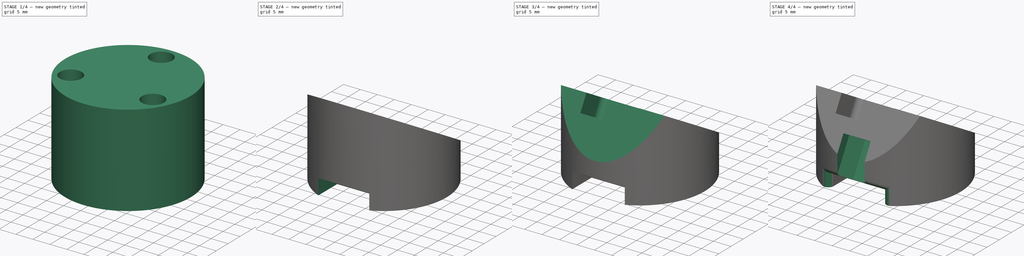
[diagram: build sequence overview — one tinted view per stage of 4, left to right]
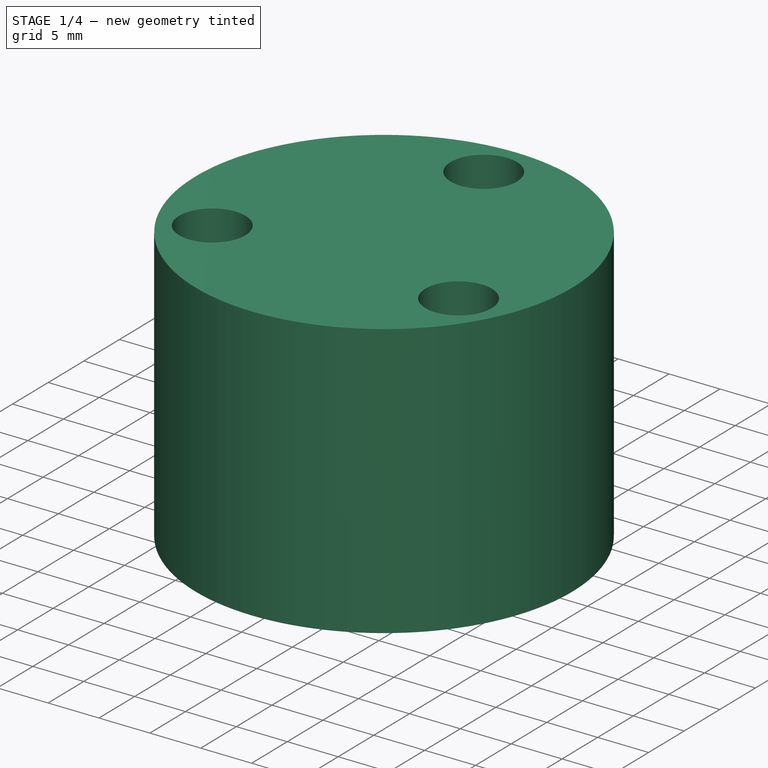
[diagram: stage 1 of 4 — iso view after this stage's code; geometry added in this stage tinted green]
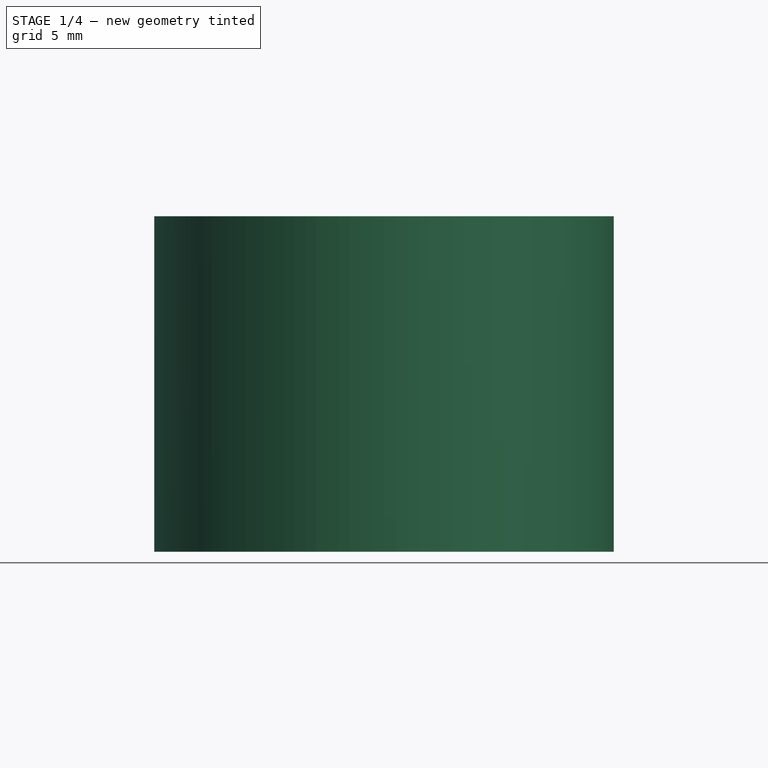
[diagram: stage 1 of 4 — front view after this stage's code; geometry added in this stage tinted green]
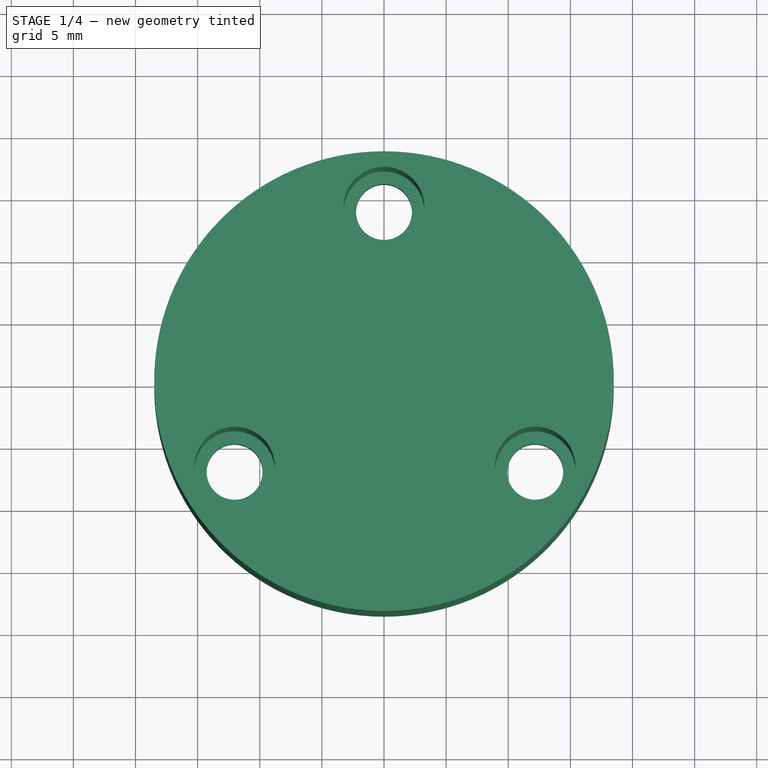
[diagram: stage 1 of 4 — top view after this stage's code; geometry added in this stage tinted green]
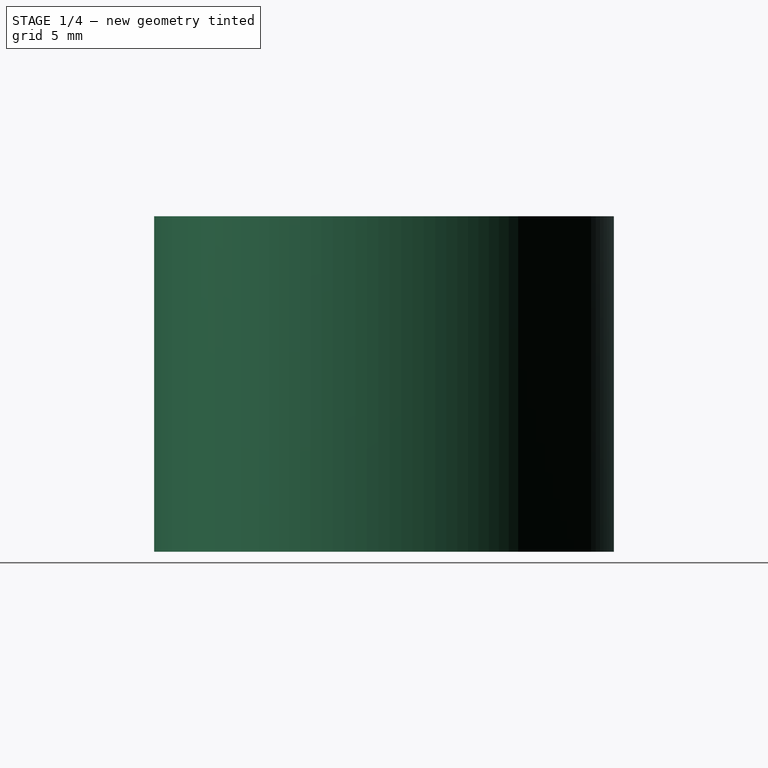
[diagram: stage 1 of 4 — right view after this stage's code; geometry added in this stage tinted green]
FCSTD DOCUMENT  (FreeCAD 0.21R33771 (Git))
Label: wheel_bracket
License: All rights reserved
LicenseURL: http://en.wikipedia.org/wiki/All_rights_reserved
objects: Sketcher::SketchObject×10, PartDesign::Pocket×8, PartDesign::Pad×2, PartDesign::Fillet×1, PartDesign::Body×1
note: 33 computed .brp shape members not serialized (recipe doc carries the construction recipe); baked Part::Feature solids carry a one-line shape summary decoded from their .brp

FEATURE [Sketcher::SketchObject] Sketch
  FullyConstrained = true
  MapMode = 5
  Support = -> [XY_Plane]
  sketch-geometry (4):
    g0: Circle CenterX=0 CenterY=14 CenterZ=0 NormalX=0 NormalY=0 NormalZ=1 AngleXU=0 Radius=2.25
    g1: Circle CenterX=-12.0274 CenterY=-6.91571 CenterZ=0 NormalX=0 NormalY=0 NormalZ=1 AngleXU=0 Radius=2.25
    g2: Circle CenterX=12.1726 CenterY=-6.91571 CenterZ=0 NormalX=0 NormalY=0 NormalZ=1 AngleXU=0 Radius=2.25
    g3: ArcOfCircle CenterX=0 CenterY=0 CenterZ=0 NormalX=0 NormalY=0 NormalZ=1 AngleXU=0 Radius=18.5 StartAngle=1.5708 EndAngle=7.85398
  constraints (13):
    c: PointOnObject(g0,g-2)
    c: Diameter(g0) = 4.5
    c: Equal(g2,g0)
    c: Equal(g1,g2)
    c: Horizontal(g2,g1)
    c: Distance(g2,g0) = 24.2
    c: DistanceX(g1,g2) = 24.2
    c: DistanceY(g-1,g0) = 14
    c: Distance(g2,g-1) = 14
    c: Coincident(g3,g-1)
    c: PointOnObject(g3,g-2)
    c: PointOnObject(g3,g-2)
    c: Diameter(g3) = 37
FEATURE [PartDesign::Pad] Pad  label="base"
  Direction = (0,0,1)
  Length = 5
  Length2 = 10
  Profile = -> Sketch
  ReferenceAxis = -> Sketch [N_Axis]
  Refine = true
  Type = 0
FEATURE [Sketcher::SketchObject] Sketch001
  FullyConstrained = true
  MapMode = 5
  Placement = pos=(0,0,5) rot=(0,0,1;0rad)
  Support = -> [Pad]
  sketch-geometry (4):
    g0: Circle CenterX=0 CenterY=14 CenterZ=0 NormalX=0 NormalY=0 NormalZ=1 AngleXU=0 Radius=3.25
    g1: Circle CenterX=-12.0274 CenterY=-6.91571 CenterZ=0 NormalX=0 NormalY=0 NormalZ=1 AngleXU=0 Radius=3.25
    g2: Circle CenterX=12.1726 CenterY=-6.91571 CenterZ=0 NormalX=0 NormalY=0 NormalZ=1 AngleXU=0 Radius=3.25
    g3: ArcOfCircle CenterX=0 CenterY=0 CenterZ=0 NormalX=0 NormalY=0 NormalZ=1 AngleXU=0 Radius=18.5 StartAngle=1.5708 EndAngle=7.85398
  constraints (13):
    c: PointOnObject(g0,g-2)
    c: Diameter(g0) = 6.5
    c: Equal(g0,g2)
    c: Equal(g1,g0)
    c: DistanceY(g-1,g0) = 14
    c: Distance(g2,g0) = 24.2
    c: Distance(g2,g-1) = 14
    c: Horizontal(g1,g2)
    c: DistanceX(g1,g2) = 24.2
    c: Coincident(g3,g-1)
    c: PointOnObject(g3,g-2)
    c: PointOnObject(g3,g-2)
    c: Diameter(g3) = 37
FEATURE [PartDesign::Pad] Pad001  label="screw_holes"
  BaseFeature = -> Pad
  Direction = (0,0,1)
  Length = 22
  Length2 = 10
  Profile = -> Sketch001
  ReferenceAxis = -> Sketch001 [N_Axis]
  Refine = true
  Type = 0
FEATURE [Sketcher::SketchObject] Sketch002
  FullyConstrained = true
  MapMode = 5
  Placement = pos=(0,0,0) rot=(1,0,0;3.14159rad)
  Support = -> [Pad001]
  sketch-geometry (1):
    g0: Circle CenterX=0 CenterY=0 CenterZ=0 NormalX=0 NormalY=0 NormalZ=1 AngleXU=0 Radius=8
  constraints (2):
    c: Coincident(g0,g-1)
    c: Diameter(g0) = 16
FEATURE [PartDesign::Pocket] Pocket  label="recess"
  BaseFeature = -> Pad001
  Direction = (0,0,1)
  Length = 2.5
  Length2 = 5
  Profile = -> Sketch002
  ReferenceAxis = -> Sketch002 [N_Axis]
  Type = 0
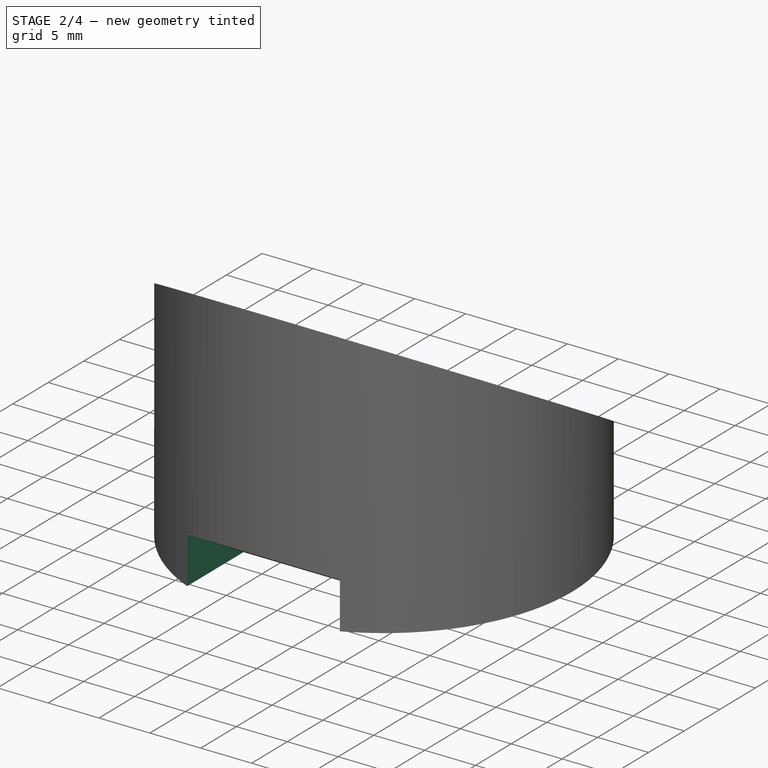
[diagram: stage 2 of 4 — iso view after this stage's code; geometry added in this stage tinted green]
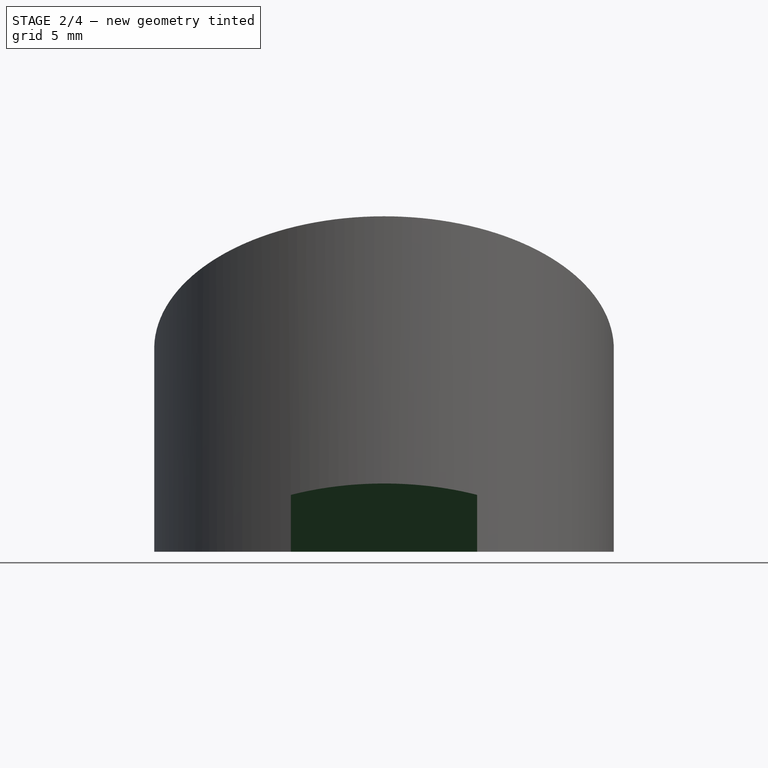
[diagram: stage 2 of 4 — front view after this stage's code; geometry added in this stage tinted green]
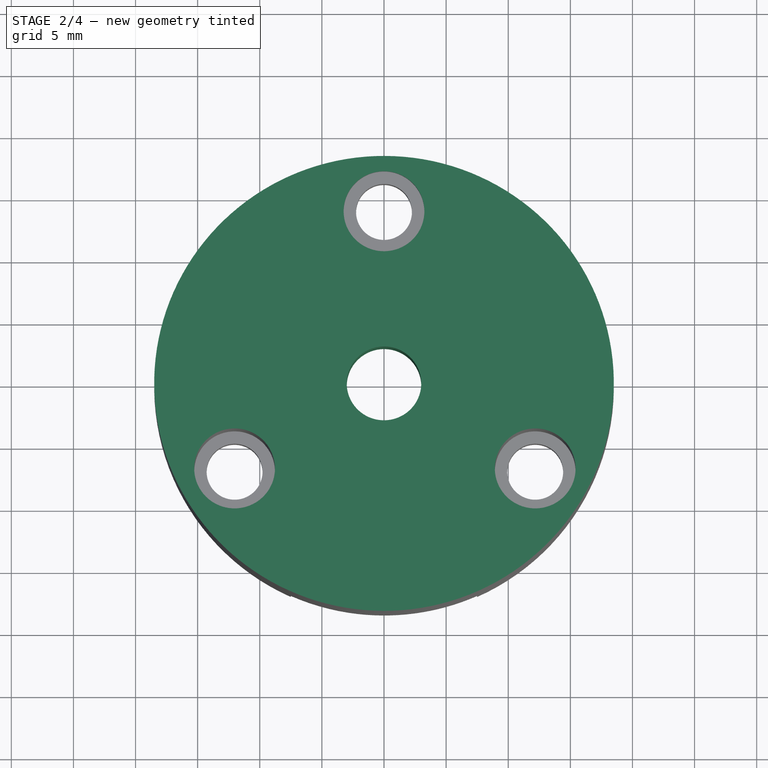
[diagram: stage 2 of 4 — top view after this stage's code; geometry added in this stage tinted green]
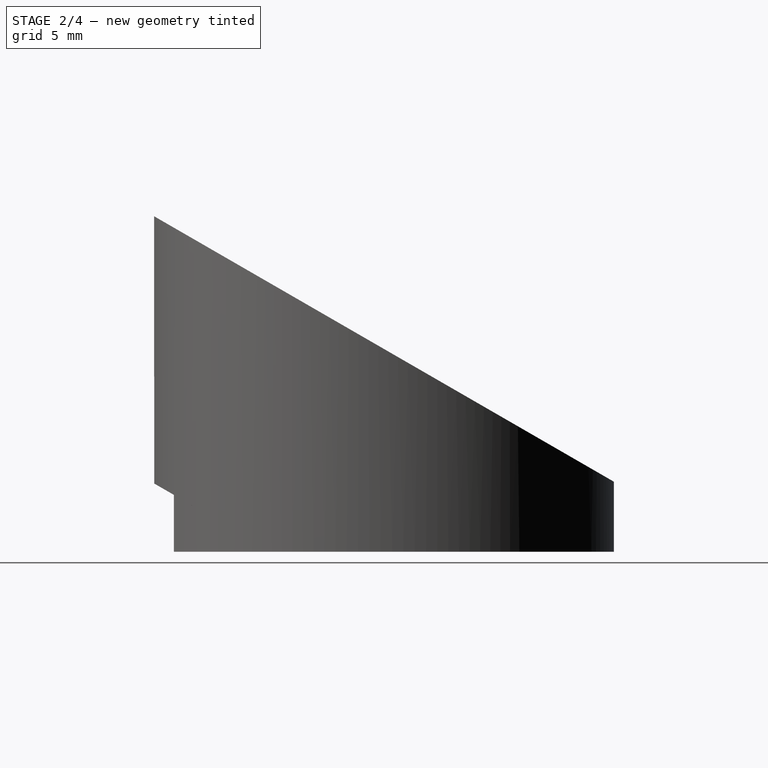
[diagram: stage 2 of 4 — right view after this stage's code; geometry added in this stage tinted green]
FEATURE [Sketcher::SketchObject] Sketch003
  FullyConstrained = true
  MapMode = 5
  Placement = pos=(0,0,2.5) rot=(1,0,0;3.14159rad)
  Support = -> [Pocket]
  sketch-geometry (1):
    g0: Circle CenterX=0 CenterY=0 CenterZ=0 NormalX=0 NormalY=0 NormalZ=1 AngleXU=0 Radius=3
  constraints (2):
    c: Coincident(g0,g-1)
    c: Diameter(g0) = 6
FEATURE [PartDesign::Pocket] Pocket001  label="pin_hole"
  BaseFeature = -> Pocket
  Direction = (0,0,1)
  Length = 15
  Length2 = 5
  Profile = -> Sketch003
  ReferenceAxis = -> Sketch003 [N_Axis]
  Type = 1
FEATURE [Sketcher::SketchObject] Sketch005
  FullyConstrained = true
  MapMode = 5
  Placement = pos=(0,0,0) rot=(1,0,0;3.14159rad)
  sketch-geometry (5):
    g0: LineSegment StartX=-7.5 StartY=18.5 StartZ=0 EndX=-7.5 EndY=9 EndZ=0
    g1: LineSegment StartX=-7.5 StartY=9 StartZ=0 EndX=7.5 EndY=9 EndZ=0
    g2: LineSegment StartX=7.5 StartY=9 StartZ=0 EndX=7.5 EndY=18.5 EndZ=0
    g3: LineSegment StartX=7.5 StartY=18.5 StartZ=0 EndX=-7.5 EndY=18.5 EndZ=0
    g4: GeomPoint X=0 Y=13.75 Z=0
  constraints (13):
    c: Coincident(g0,g1)
    c: Coincident(g1,g2)
    c: Coincident(g2,g3)
    c: Coincident(g3,g0)
    c: Horizontal(g1)
    c: Horizontal(g3)
    c: Vertical(g0)
    c: Vertical(g2)
    c: Symmetric(g1,g0,g4)
    c: PointOnObject(g4,g-2)
    c: DistanceX(g1,g1) = 15
    c: DistanceY(g2,g2) = 9.5
    c: DistanceY(g-1,g1) = 9
FEATURE [PartDesign::Pocket] Pocket002  label="cable_slot"
  BaseFeature = -> Pocket001
  Direction = (0,-1.73,1)
  Length = 6
  Length2 = 5
  Profile = -> Sketch005
  ReferenceAxis = -> Sketch005 [N_Axis]
  Type = 0
  UseCustomVector = true
FEATURE [Sketcher::SketchObject] Sketch006
  AttachmentOffset = pos=(0,0,20) rot=(0,0,1;0rad)
  FullyConstrained = true
  MapMode = 5
  Placement = pos=(20,-4.4e-15,4.4e-15) rot=(0.57735,0.57735,0.57735;2.0944rad)
  Support = -> [YZ_Plane]
  sketch-geometry (3):
    g0: LineSegment StartX=-18.5 StartY=27 StartZ=0 EndX=18.5 EndY=27 EndZ=0
    g1: LineSegment StartX=-18.5 StartY=27 StartZ=0 EndX=18.5 EndY=5.63804 EndZ=0
    g2: LineSegment StartX=18.5 StartY=27 StartZ=0 EndX=18.5 EndY=5.63804 EndZ=0
  constraints (8):
    c: Coincident(g1,g0)
    c: Coincident(g2,g0)
    c: Coincident(g2,g1)
    c: Vertical(g2)
    c: Angle(g1,g0) = 0.523599
    c: DistanceX(g0,g0) = 37
    c: Symmetric(g0,g0,g-2)
    c: DistanceY(g-1,g0) = 27
FEATURE [PartDesign::Pocket] Pocket003
  BaseFeature = -> Pocket002
  Direction = (-1,2e-16,-3e-16)
  Length = 5
  Length2 = 5
  Profile = -> Sketch006
  ReferenceAxis = -> Sketch006 [N_Axis]
  Type = 1
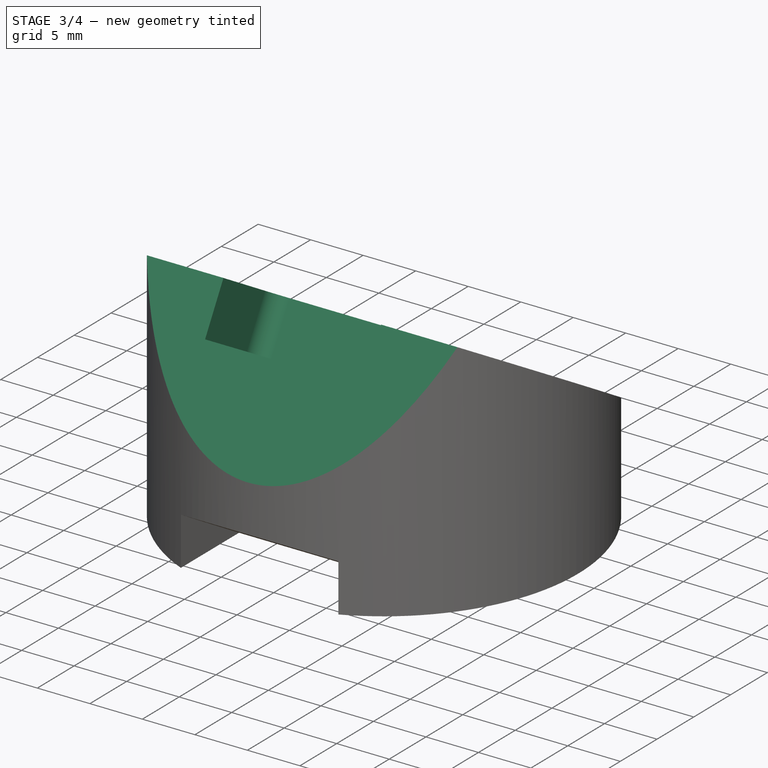
[diagram: stage 3 of 4 — iso view after this stage's code; geometry added in this stage tinted green]
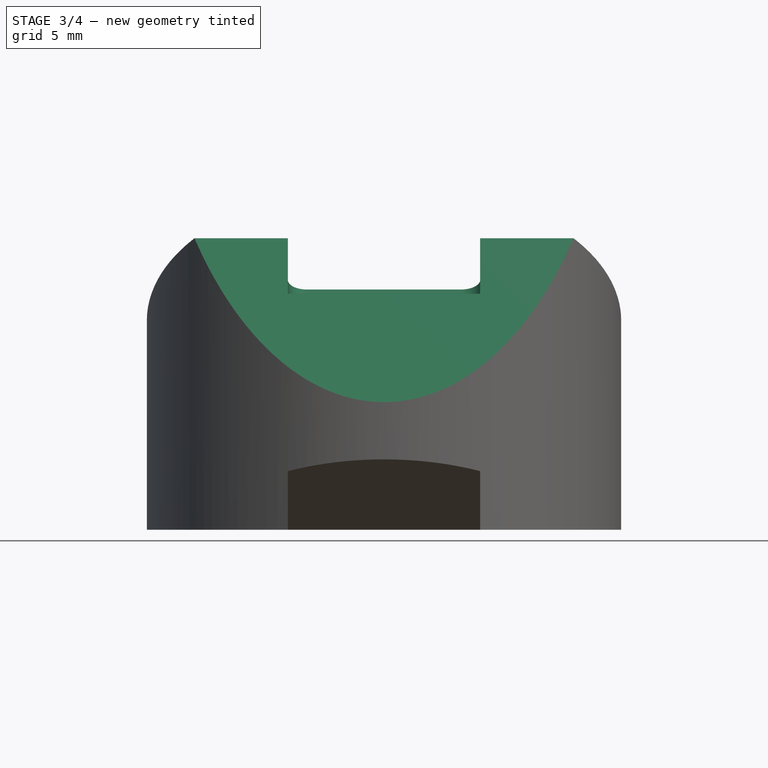
[diagram: stage 3 of 4 — front view after this stage's code; geometry added in this stage tinted green]
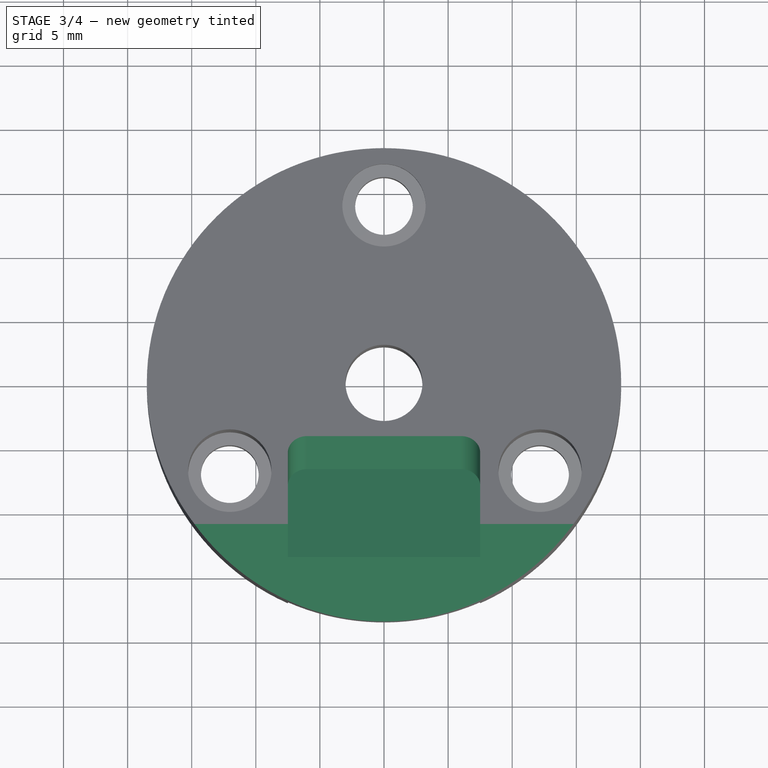
[diagram: stage 3 of 4 — top view after this stage's code; geometry added in this stage tinted green]
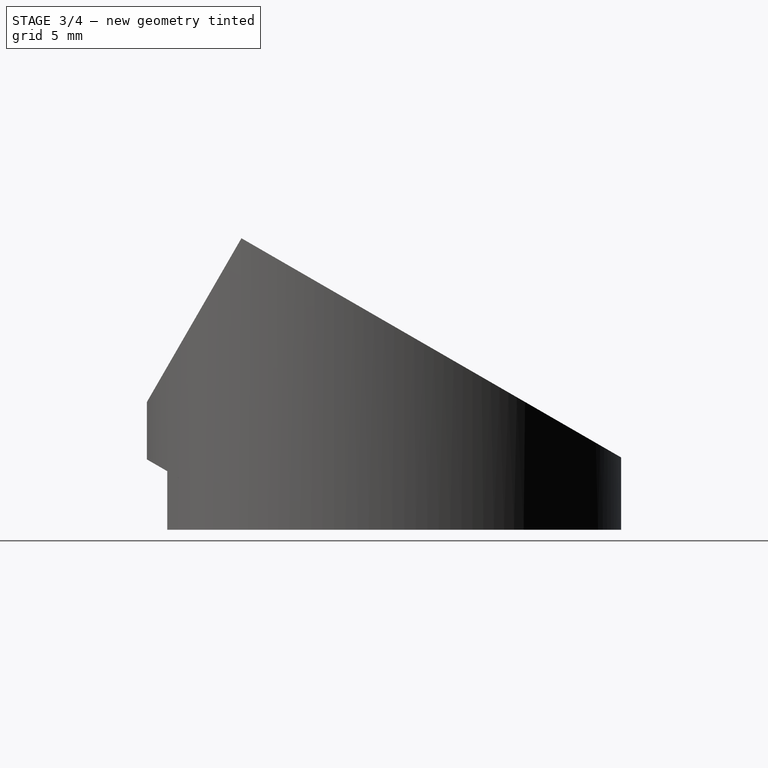
[diagram: stage 3 of 4 — right view after this stage's code; geometry added in this stage tinted green]
FEATURE [Sketcher::SketchObject] Sketch007
  FullyConstrained = false
  MapMode = 5
  Placement = pos=(-1.8e-15,7.06634,12.2393) rot=(-1,0,0;0.523599rad)
  Support = -> [Pocket003]
  sketch-geometry (5):
    g0: LineSegment StartX=-20.8077 StartY=-21 StartZ=0 EndX=-20.8077 EndY=-32.0988 EndZ=0
    g1: LineSegment StartX=-20.8077 StartY=-32.0988 StartZ=0 EndX=20.8077 EndY=-32.0988 EndZ=0
    g2: LineSegment StartX=20.8077 StartY=-32.0988 StartZ=0 EndX=20.8077 EndY=-21 EndZ=0
    g3: LineSegment StartX=20.8077 StartY=-21 StartZ=0 EndX=-20.8077 EndY=-21 EndZ=0
    g4: GeomPoint X=0 Y=-26.5494 Z=0
  constraints (11):
    c: Coincident(g0,g1)
    c: Coincident(g1,g2)
    c: Coincident(g2,g3)
    c: Coincident(g3,g0)
    c: Horizontal(g1)
    c: Horizontal(g3)
    c: Vertical(g0)
    c: Vertical(g2)
    c: Symmetric(g1,g0,g4)
    c: PointOnObject(g4,g-2)
    c: DistanceY(g2,g-1) = 21
FEATURE [PartDesign::Pocket] Pocket004
  BaseFeature = -> Pocket003
  Direction = (1e-16,-0.5,-0.866025)
  Length = 5
  Length2 = 5
  Profile = -> Sketch007
  ReferenceAxis = -> Sketch007 [N_Axis]
  Type = 1
FEATURE [Sketcher::SketchObject] Sketch012
  FullyConstrained = true
  MapMode = 5
  Placement = pos=(-2e-15,7.06634,12.2393) rot=(-1,0,0;0.523599rad)
  sketch-geometry (7):
    g0: ArcOfCircle CenterX=-6 CenterY=-14.5 CenterZ=0 NormalX=0 NormalY=0 NormalZ=1 AngleXU=0 Radius=1.5 StartAngle=1.5708 EndAngle=3.14159
    g1: LineSegment StartX=-6 StartY=-13 StartZ=0 EndX=6 EndY=-13 EndZ=0
    g2: ArcOfCircle CenterX=6 CenterY=-14.5 CenterZ=0 NormalX=0 NormalY=0 NormalZ=1 AngleXU=0 Radius=1.5 StartAngle=5.084e-13 EndAngle=1.5708
    g3: LineSegment StartX=7.5 StartY=-14.5 StartZ=0 EndX=7.5 EndY=-21 EndZ=0
    g4: LineSegment StartX=-7.5 StartY=-21 StartZ=0 EndX=-7.5 EndY=-14.5 EndZ=0
    g5: GeomPoint X=-7.5 Y=-13 Z=0
    g6: LineSegment StartX=-7.5 StartY=-21 StartZ=0 EndX=7.5 EndY=-21 EndZ=0
  constraints (17):
    c: Tangent(g0,g1) = 1.5708
    c: Tangent(g1,g2) = 1.5708
    c: Tangent(g2,g3) = 1.5708
    c: Tangent(g4,g0) = 1.5708
    c: Vertical(g3)
    c: Vertical(g4)
    c: Equal(g0,g2)
    c: PointOnObject(g5,g1)
    c: PointOnObject(g5,g4)
    c: Symmetric(g1,g0,g-2)
    c: Coincident(g6,g4)
    c: Coincident(g6,g3)
    c: Horizontal(g6)
    c: DistanceY(g3,g-1) = 21
    c: DistanceX(g6,g6) = 15
    c: DistanceX(g1,g1) = 12
    c: DistanceY(g1,g-1) = 13
FEATURE [PartDesign::Pocket] Pocket009  label="slot"
  BaseFeature = -> Pocket004
  Direction = (0,-0.5,-0.866025)
  Length = 5
  Length2 = 5
  Profile = -> Sketch012
  ReferenceAxis = -> Sketch012 [N_Axis]
  Type = 0
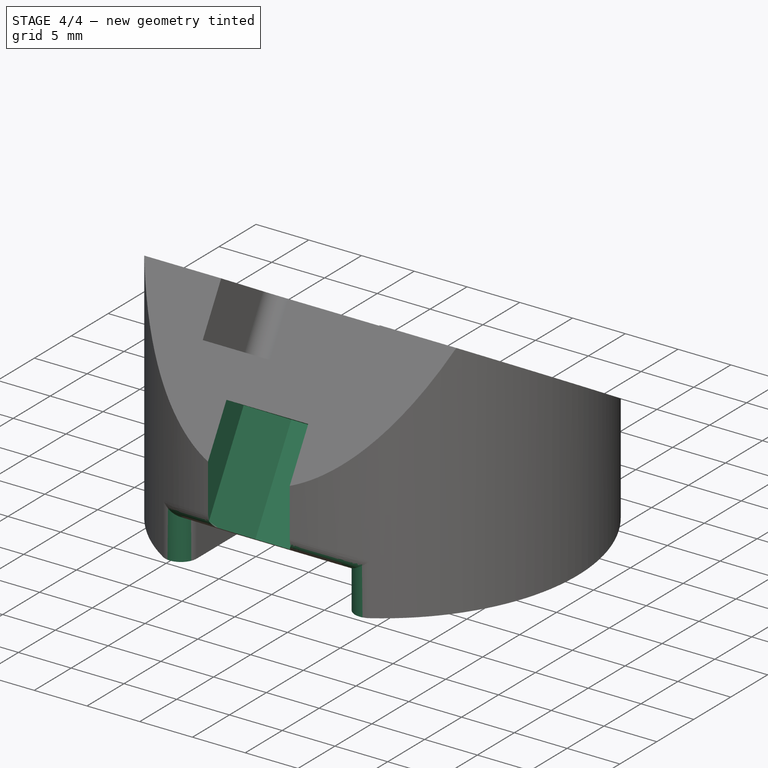
[diagram: stage 4 of 4 — iso view after this stage's code; geometry added in this stage tinted green]
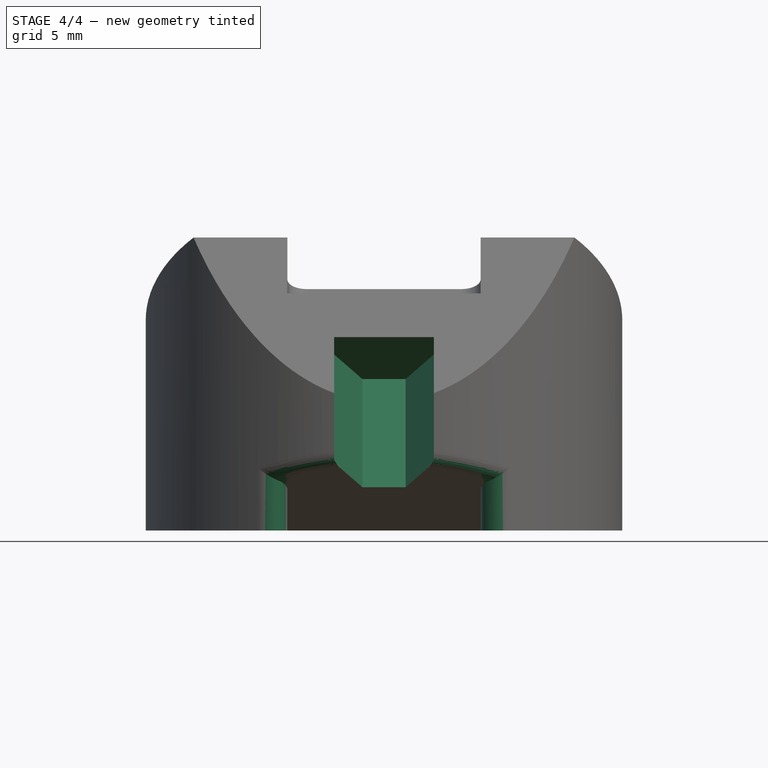
[diagram: stage 4 of 4 — front view after this stage's code; geometry added in this stage tinted green]
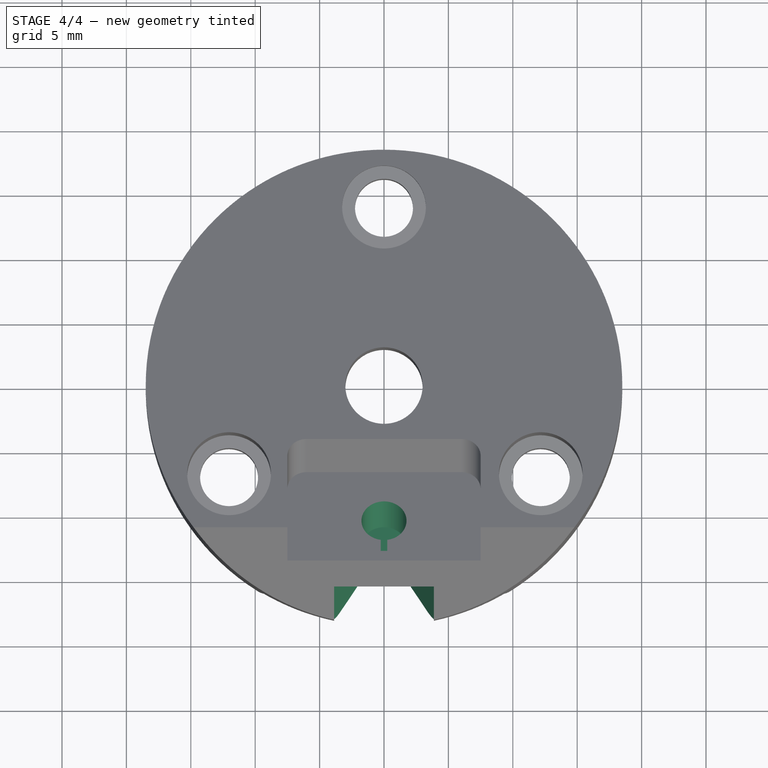
[diagram: stage 4 of 4 — top view after this stage's code; geometry added in this stage tinted green]
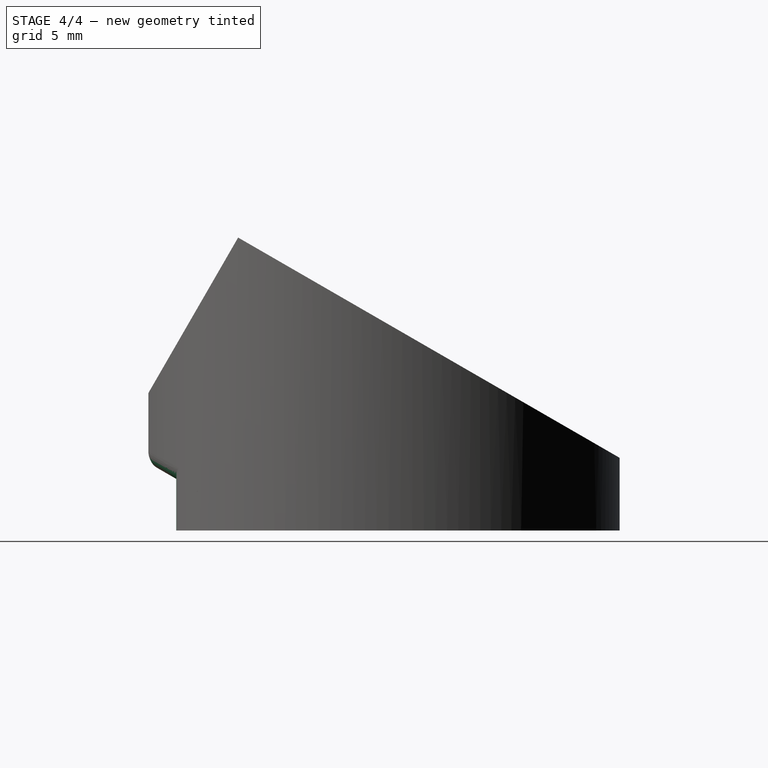
[diagram: stage 4 of 4 — right view after this stage's code; geometry added in this stage tinted green]
FEATURE [Sketcher::SketchObject] Sketch015
  FullyConstrained = true
  MapMode = 5
  Placement = pos=(0,-2.254,-3.89942) rot=(1,0,0;2.61748rad)
  sketch-geometry (6):
    g0: LineSegment StartX=-1.675 StartY=14.5 StartZ=0 EndX=1.675 EndY=14.5 EndZ=0
    g1: LineSegment StartX=1.675 StartY=14.5 StartZ=0 EndX=3.8747 EndY=18.31 EndZ=0
    g2: LineSegment StartX=-3.8747 StartY=18.31 StartZ=0 EndX=-1.675 EndY=14.5 EndZ=0
    g3: LineSegment StartX=-3.8747 StartY=18.31 StartZ=0 EndX=-3.8747 EndY=21.01 EndZ=0
    g4: LineSegment StartX=-3.8747 StartY=21.01 StartZ=0 EndX=3.8747 EndY=21.01 EndZ=0
    g5: LineSegment StartX=3.8747 StartY=21.01 StartZ=0 EndX=3.8747 EndY=18.31 EndZ=0
  constraints (17):
    c: Coincident(g0,g1)
    c: Coincident(g2,g0)
    c: DistanceX(g0,g0) = 3.35
    c: Symmetric(g0,g0,g-2)
    c: Angle(g1,g0) = 2.0944
    c: Angle(g0,g2) = 2.0944
    c: DistanceY(g-1,g0) = 14.5
    c: Equal(g1,g2)
    c: Coincident(g3,g2)
    c: Vertical(g3)
    c: Coincident(g4,g3)
    c: Horizontal(g4)
    c: Coincident(g5,g4)
    c: Coincident(g5,g1)
    c: Vertical(g5)
    c: DistanceY(g5,g5) = 2.7
    c: DistanceY(g-1,g4) = 21.01
FEATURE [PartDesign::Pocket] Pocket012  label="hex_hole"
  BaseFeature = -> Pocket009
  Direction = (0,0.500444,0.865769)
  Length = 9.7
  Length2 = 5
  Profile = -> Sketch015
  ReferenceAxis = -> Sketch015 [N_Axis]
  Type = 0
FEATURE [Sketcher::SketchObject] Sketch017
  FullyConstrained = true
  MapMode = 5
  Placement = pos=(1e-16,4.56634,7.90914) rot=(-1,0,0;0.523599rad)
  sketch-geometry (4):
    g0: ArcOfCircle CenterX=0 CenterY=-17.4 CenterZ=0 NormalX=0 NormalY=0 NormalZ=1 AngleXU=0 Radius=1.75 StartAngle=4.85574 EndAngle=10.8522
    g1: LineSegment StartX=-0.25 StartY=-19.1321 StartZ=0 EndX=-0.25 EndY=-20.1321 EndZ=0
    g2: LineSegment StartX=-0.25 StartY=-20.1321 StartZ=0 EndX=0.25 EndY=-20.1321 EndZ=0
    g3: LineSegment StartX=0.25 StartY=-19.1321 StartZ=0 EndX=0.25 EndY=-20.1321 EndZ=0
  constraints (13):
    c: PointOnObject(g0,g-2)
    c: Diameter(g0) = 3.5
    c: Horizontal(g0,g0)
    c: Coincident(g1,g0)
    c: Vertical(g1)
    c: Coincident(g2,g1)
    c: Horizontal(g2)
    c: Coincident(g3,g0)
    c: Coincident(g3,g2)
    c: Vertical(g3)
    c: DistanceX(g2,g2) = 0.5
    c: DistanceY(g3,g3) = 1
    c: DistanceY(g0,g-1) = 17.4
FEATURE [PartDesign::Pocket] Pocket013  label="attachment"
  BaseFeature = -> Pocket012
  Direction = (0,-0.5,-0.866025)
  Length = 3.89
  Length2 = 5
  Profile = -> Sketch017
  ReferenceAxis = -> Sketch017 [N_Axis]
  Type = 0
FEATURE [PartDesign::Fillet] Fillet
  Base = -> Pocket013 [Edge14,Edge15,Edge21,Edge23]
  BaseFeature = -> Pocket013
  Radius = 1.5
  SupportTransform = false
  UseAllEdges = false
FEATURE [PartDesign::Body] Body
  Group = -> [Sketch,Pad,Sketch001,Pad001,Sketch002,Pocket,Sketch003,Pocket001,Sketch005,Pocket002,Sketch006,Pocket003,Sketch007,Pocket004,Sketch012,Pocket009,Sketch015,Pocket012,Sketch017,Pocket013,Fillet]
  Origin = -> Origin
  Tip = -> Fillet
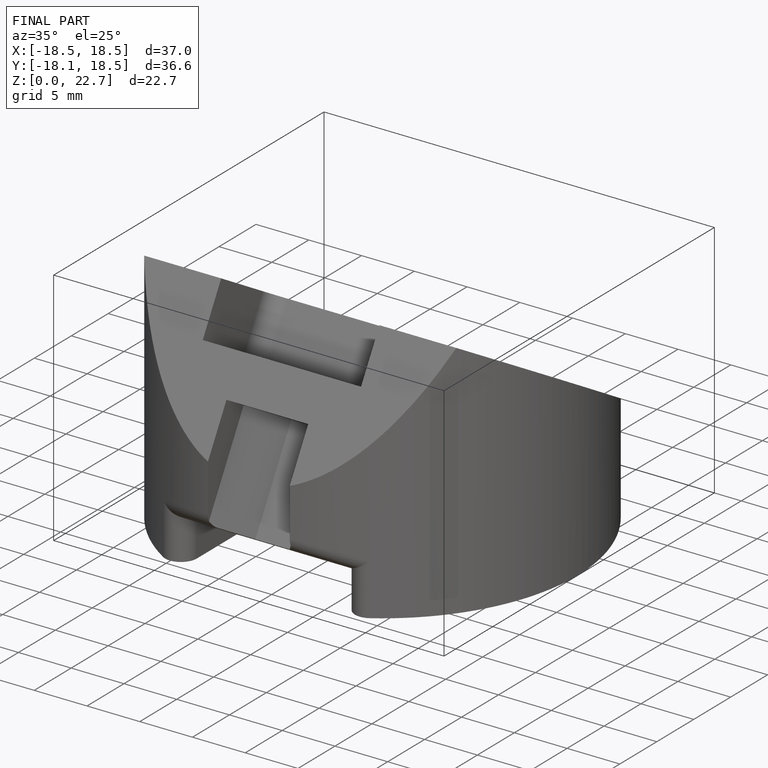
[diagram: finished part — iso view with bounding-box wireframe]
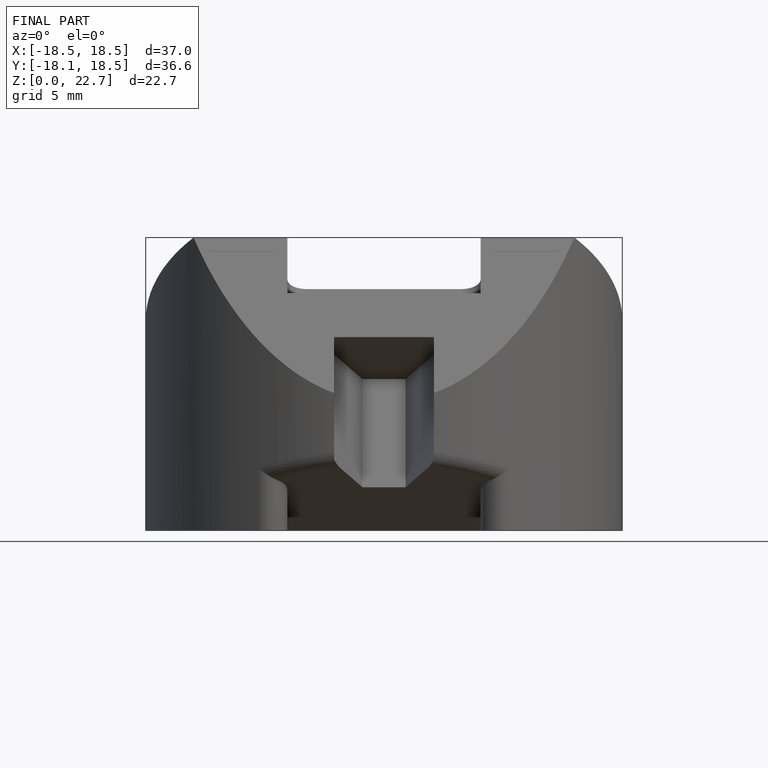
[diagram: finished part — front view with bounding-box wireframe]
